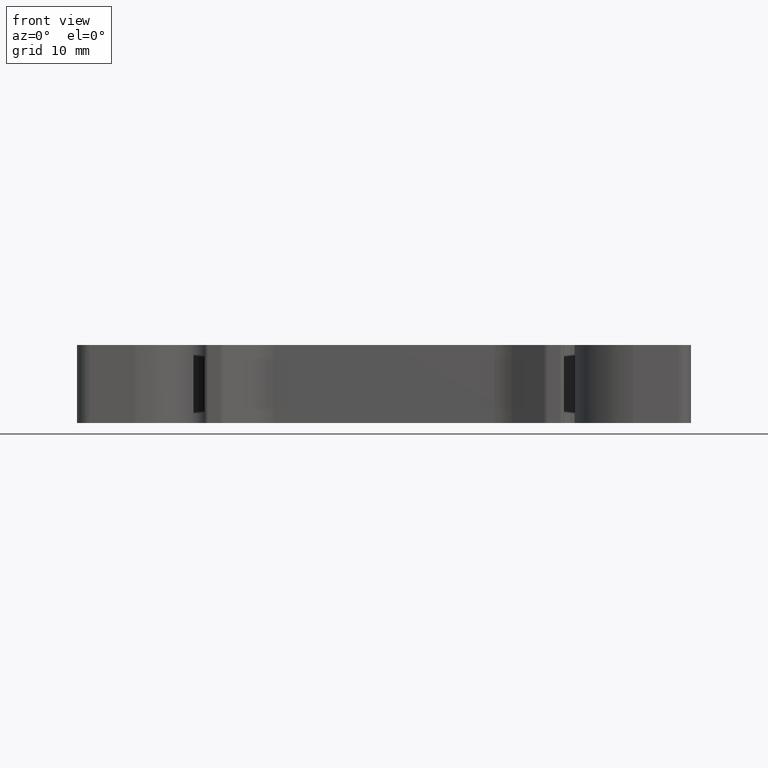
[diagram: clean part render]
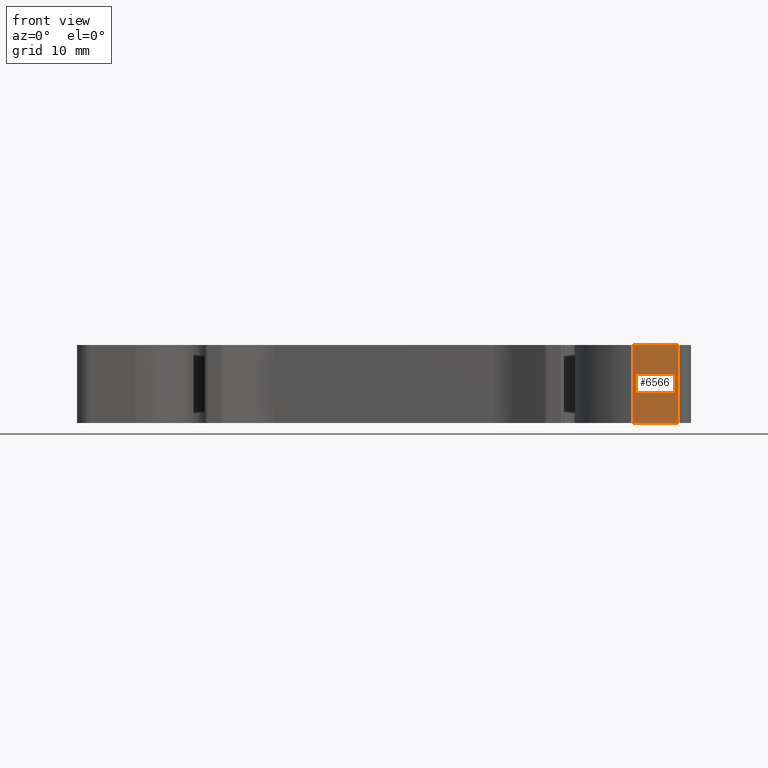
[diagram: same view with one face highlighted and labeled with its STEP entity id]
A machine part, front view. The second image highlights one B-rep face of the part: STEP entity #6566.
In plain terms, the highlighted planar face has unit normal (0, -1, -0).
Its self-contained STEP definition (entity closure, byte-faithful):
#227 = AXIS2_PLACEMENT_3D ( 'NONE', #8680, #8703, #8697 ) ;
#4662 = EDGE_LOOP ( 'NONE', ( #10082, #10072, #10061, #10081 ) ) ;
#4761 = EDGE_CURVE ( 'NONE', #10646, #10683, #11868, .T. ) ;
#4766 = EDGE_CURVE ( 'NONE', #10651, #10691, #11916, .T. ) ;
#4780 = EDGE_CURVE ( 'NONE', #10646, #10651, #11942, .T. ) ;
#4806 = EDGE_CURVE ( 'NONE', #10683, #10691, #11957, .T. ) ;
#6566 = ADVANCED_FACE ( 'NONE', ( #8698 ), #8678, .T. ) ;
#7910 = CARTESIAN_POINT ( 'NONE',  ( 1959.319909565555000, 487.6674757026423200, 3.299999999999997200 ) ) ;
#7914 = CARTESIAN_POINT ( 'NONE',  ( 1959.319909565555000, 487.6674757026430000, -3.299999999999999800 ) ) ;
#7919 = CARTESIAN_POINT ( 'NONE',  ( 1955.444869355625100, 487.6674757026430000, 3.299999999999997200 ) ) ;
#7947 = CARTESIAN_POINT ( 'NONE',  ( 1955.444869355625100, 487.6674757026447700, -3.299999999999999800 ) ) ;
#8389 = VECTOR ( 'NONE', #11919, 1000.000000000000000 ) ;
#8408 = VECTOR ( 'NONE', #11943, 1000.000000000000000 ) ;
#8418 = VECTOR ( 'NONE', #11965, 1000.000000000000000 ) ;
#8423 = VECTOR ( 'NONE', #11913, 1000.000000000000000 ) ;
#8678 = PLANE ( 'NONE',  #227 ) ;
#8680 = CARTESIAN_POINT ( 'NONE',  ( 1959.319909565555000, 487.6674757026430000, 64.80301117275325900 ) ) ;
#8697 = DIRECTION ( 'NONE',  ( 0.0000000000000000000, 0.0000000000000000000, -1.000000000000000000 ) ) ;
#8698 = FACE_OUTER_BOUND ( 'NONE', #4662, .T. ) ;
#8703 = DIRECTION ( 'NONE',  ( 0.0000000000000000000, -1.000000000000000000, -0.0000000000000000000 ) ) ;
#10061 = ORIENTED_EDGE ( 'NONE', *, *, #4766, .T. ) ;
#10072 = ORIENTED_EDGE ( 'NONE', *, *, #4780, .T. ) ;
#10081 = ORIENTED_EDGE ( 'NONE', *, *, #4806, .F. ) ;
#10082 = ORIENTED_EDGE ( 'NONE', *, *, #4761, .F. ) ;
#10646 = VERTEX_POINT ( 'NONE', #7910 ) ;
#10651 = VERTEX_POINT ( 'NONE', #7919 ) ;
#10683 = VERTEX_POINT ( 'NONE', #7914 ) ;
#10691 = VERTEX_POINT ( 'NONE', #7947 ) ;
#11868 = LINE ( 'NONE', #11915, #8389 ) ;
#11909 = CARTESIAN_POINT ( 'NONE',  ( 1955.444869355625100, 487.6674757026447700, 64.80301117275325900 ) ) ;
#11913 = DIRECTION ( 'NONE',  ( 0.0000000000000000000, 0.0000000000000000000, -1.000000000000000000 ) ) ;
#11915 = CARTESIAN_POINT ( 'NONE',  ( 1959.319909565555000, 487.6674757026430000, 64.80301117275325900 ) ) ;
#11916 = LINE ( 'NONE', #11909, #8423 ) ;
#11919 = DIRECTION ( 'NONE',  ( 0.0000000000000000000, 0.0000000000000000000, -1.000000000000000000 ) ) ;
#11930 = CARTESIAN_POINT ( 'NONE',  ( 1959.319909565555000, 487.6674757026430000, 3.299999999999997200 ) ) ;
#11942 = LINE ( 'NONE', #11930, #8408 ) ;
#11943 = DIRECTION ( 'NONE',  ( -1.000000000000000000, 0.0000000000000000000, 0.0000000000000000000 ) ) ;
#11955 = CARTESIAN_POINT ( 'NONE',  ( 1959.319909565555000, 487.6674757026430000, -3.299999999999999800 ) ) ;
#11957 = LINE ( 'NONE', #11955, #8418 ) ;
#11965 = DIRECTION ( 'NONE',  ( -1.000000000000000000, 0.0000000000000000000, 0.0000000000000000000 ) ) ;